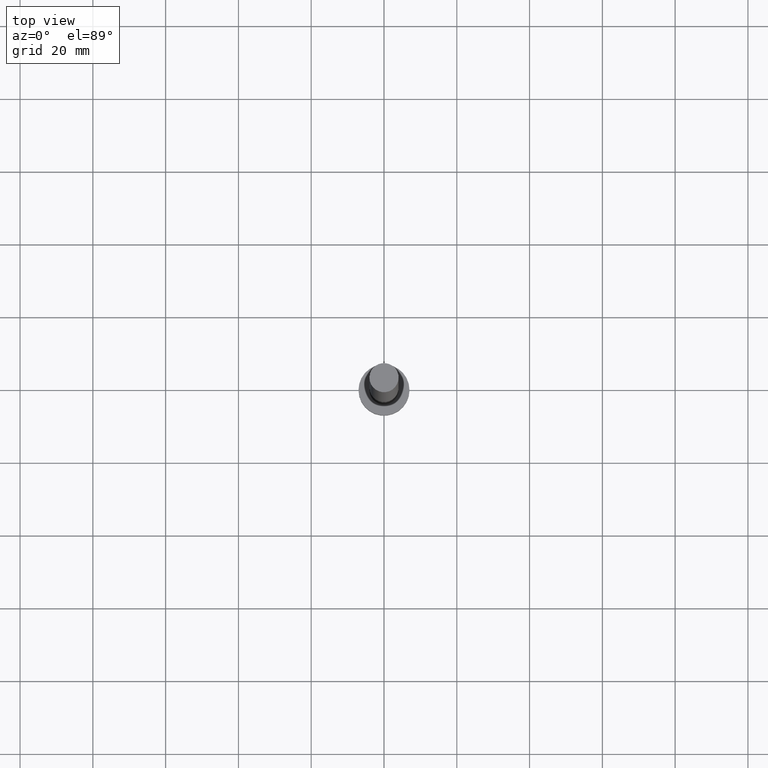
[diagram: clean part render]
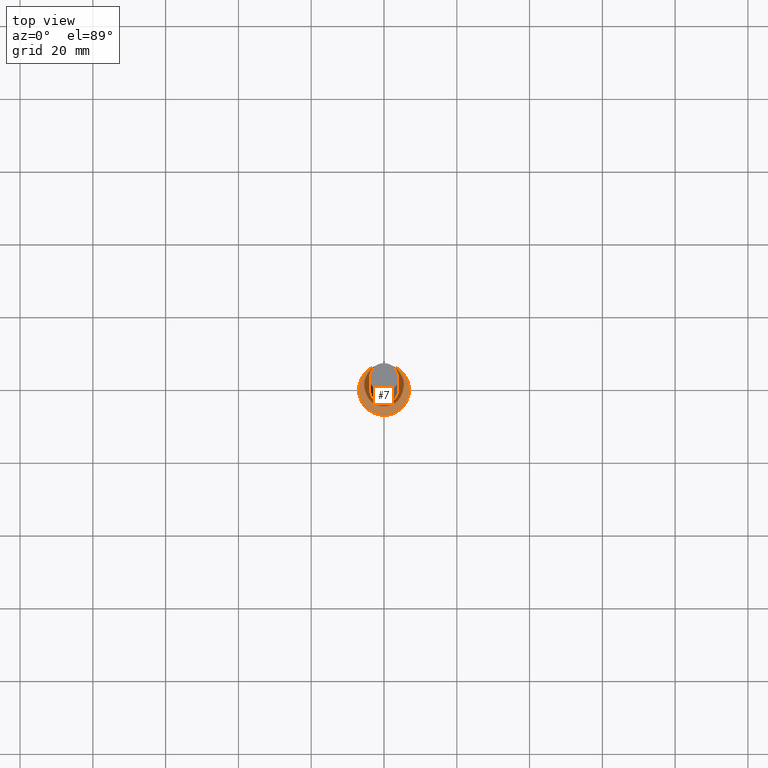
[diagram: same view with one face highlighted and labeled with its STEP entity id]
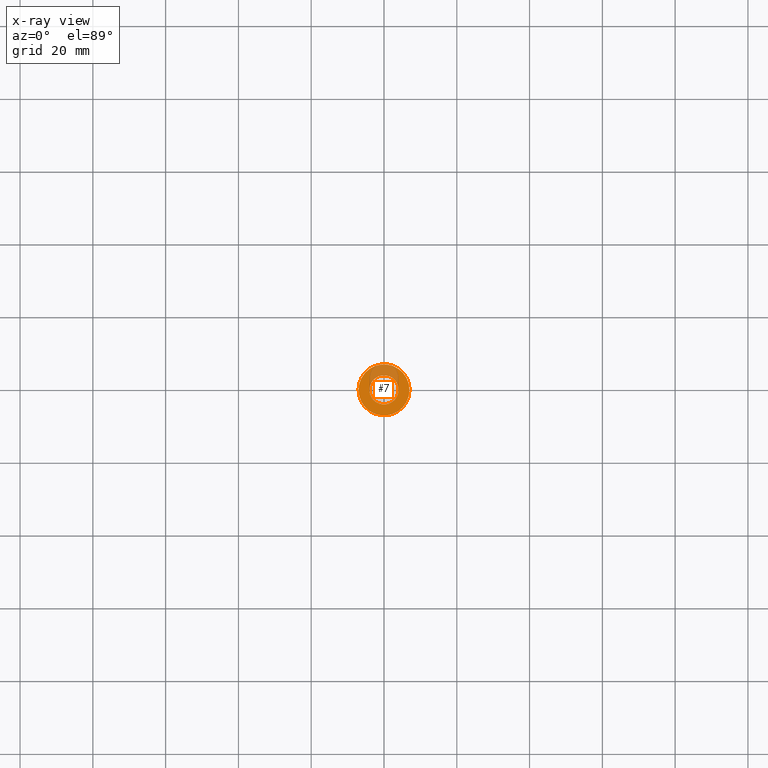
[diagram: x-ray of the same camera — body ghosted, the highlighted face saturated]
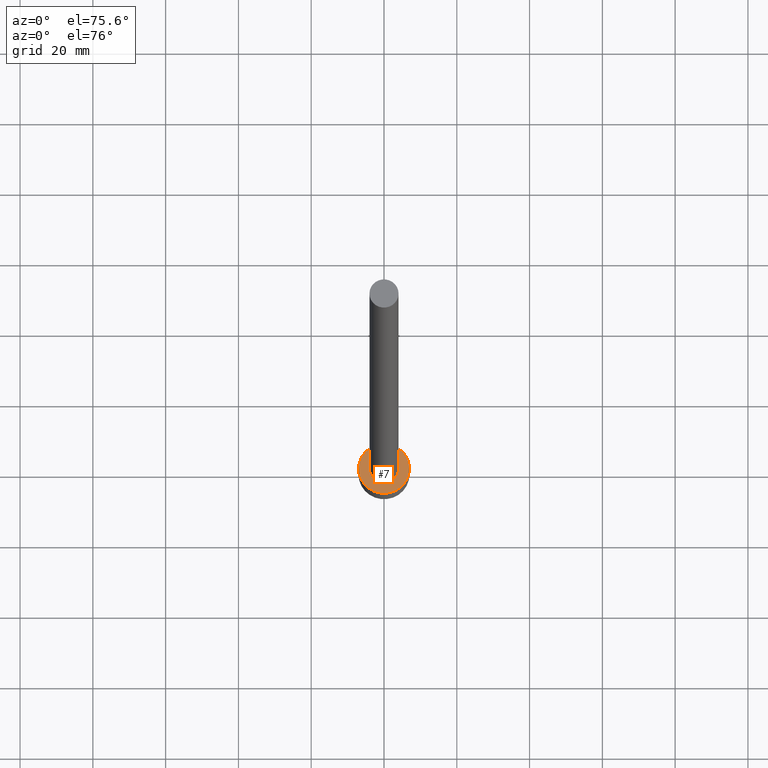
[diagram: same view with one face highlighted and labeled with its STEP entity id]
A machine part, top view. The second image highlights one B-rep face of the part: STEP entity #7.
The next image is the same camera in x-ray: the body ghosted, the highlighted face saturated — about 25% of this face is hidden behind the body in this view.
A second angle (auxiliary view) of the same face is appended — the face is thin or edge-on in the first view.
In plain terms, the highlighted planar face has unit normal (0, 0, 1).
Its self-contained STEP definition (entity closure, byte-faithful):
#7 = ADVANCED_FACE ( 'NONE', ( #113, #234 ), #153, .T. ) ;
#21 = EDGE_CURVE ( 'NONE', #229, #186, #77, .T. ) ;
#22 = CARTESIAN_POINT ( 'NONE',  ( 0.000000000000000000, 0.000000000000000000, 6.500000000000000000 ) ) ;
#24 = DIRECTION ( 'NONE',  ( 0.000000000000000000, 0.000000000000000000, 1.000000000000000000 ) ) ;
#41 = DIRECTION ( 'NONE',  ( 1.000000000000000000, 0.000000000000000000, 0.000000000000000000 ) ) ;
#62 = CARTESIAN_POINT ( 'NONE',  ( -4.000000000000000000, 0.000000000000000000, 6.500000000000000000 ) ) ;
#63 = CARTESIAN_POINT ( 'NONE',  ( 7.000000000000000000, 8.572527594031471218E-16, 6.500000000000000000 ) ) ;
#69 = DIRECTION ( 'NONE',  ( 0.000000000000000000, 0.000000000000000000, 1.000000000000000000 ) ) ;
#73 = AXIS2_PLACEMENT_3D ( 'NONE', #248, #191, #94 ) ;
#74 = ORIENTED_EDGE ( 'NONE', *, *, #165, .T. ) ;
#77 = CIRCLE ( 'NONE', #150, 4.000000000000000000 ) ;
#91 = AXIS2_PLACEMENT_3D ( 'NONE', #22, #24, #139 ) ;
#92 = EDGE_LOOP ( 'NONE', ( #189, #168 ) ) ;
#94 = DIRECTION ( 'NONE',  ( 1.000000000000000000, 0.000000000000000000, -0.000000000000000000 ) ) ;
#101 = CIRCLE ( 'NONE', #91, 7.000000000000000000 ) ;
#109 = AXIS2_PLACEMENT_3D ( 'NONE', #244, #69, #158 ) ;
#113 = FACE_BOUND ( 'NONE', #92, .T. ) ;
#119 = CARTESIAN_POINT ( 'NONE',  ( -7.000000000000000000, 0.000000000000000000, 6.500000000000000000 ) ) ;
#122 = CARTESIAN_POINT ( 'NONE',  ( 4.000000000000000000, 4.898587196589412829E-16, 6.500000000000000000 ) ) ;
#138 = DIRECTION ( 'NONE',  ( 1.000000000000000000, 0.000000000000000000, 0.000000000000000000 ) ) ;
#139 = DIRECTION ( 'NONE',  ( 1.000000000000000000, 0.000000000000000000, 0.000000000000000000 ) ) ;
#147 = VERTEX_POINT ( 'NONE', #63 ) ;
#150 = AXIS2_PLACEMENT_3D ( 'NONE', #175, #253, #41 ) ;
#153 = PLANE ( 'NONE',  #73 ) ;
#158 = DIRECTION ( 'NONE',  ( 1.000000000000000000, 0.000000000000000000, 0.000000000000000000 ) ) ;
#159 = DIRECTION ( 'NONE',  ( 0.000000000000000000, 0.000000000000000000, 1.000000000000000000 ) ) ;
#160 = EDGE_LOOP ( 'NONE', ( #74, #230 ) ) ;
#165 = EDGE_CURVE ( 'NONE', #171, #147, #101, .T. ) ;
#166 = CIRCLE ( 'NONE', #109, 7.000000000000000000 ) ;
#168 = ORIENTED_EDGE ( 'NONE', *, *, #231, .F. ) ;
#171 = VERTEX_POINT ( 'NONE', #119 ) ;
#175 = CARTESIAN_POINT ( 'NONE',  ( 0.000000000000000000, 0.000000000000000000, 6.500000000000000000 ) ) ;
#186 = VERTEX_POINT ( 'NONE', #122 ) ;
#187 = EDGE_CURVE ( 'NONE', #147, #171, #166, .T. ) ;
#189 = ORIENTED_EDGE ( 'NONE', *, *, #21, .F. ) ;
#191 = DIRECTION ( 'NONE',  ( 0.000000000000000000, 0.000000000000000000, 1.000000000000000000 ) ) ;
#213 = AXIS2_PLACEMENT_3D ( 'NONE', #255, #159, #138 ) ;
#229 = VERTEX_POINT ( 'NONE', #62 ) ;
#230 = ORIENTED_EDGE ( 'NONE', *, *, #187, .T. ) ;
#231 = EDGE_CURVE ( 'NONE', #186, #229, #252, .T. ) ;
#234 = FACE_OUTER_BOUND ( 'NONE', #160, .T. ) ;
#244 = CARTESIAN_POINT ( 'NONE',  ( 0.000000000000000000, 0.000000000000000000, 6.500000000000000000 ) ) ;
#248 = CARTESIAN_POINT ( 'NONE',  ( 0.000000000000000000, 0.000000000000000000, 6.500000000000000000 ) ) ;
#252 = CIRCLE ( 'NONE', #213, 4.000000000000000000 ) ;
#253 = DIRECTION ( 'NONE',  ( 0.000000000000000000, 0.000000000000000000, 1.000000000000000000 ) ) ;
#255 = CARTESIAN_POINT ( 'NONE',  ( 0.000000000000000000, 0.000000000000000000, 6.500000000000000000 ) ) ;